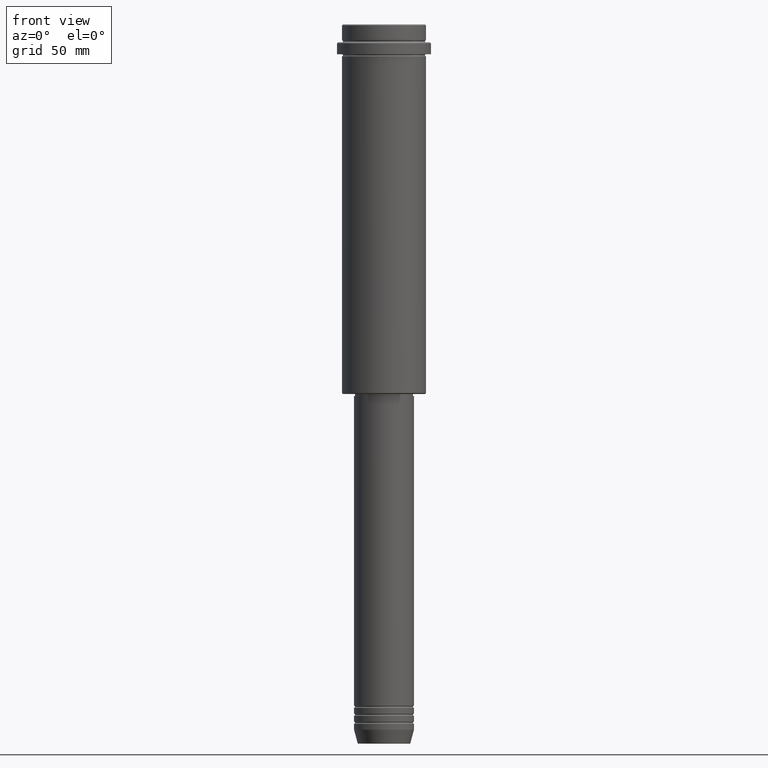
[diagram: clean part render]
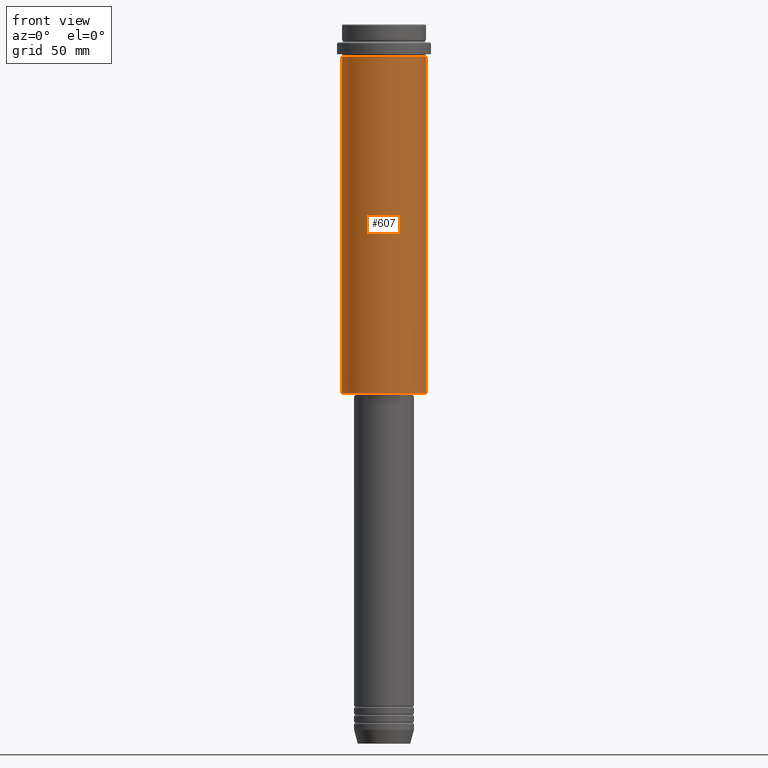
[diagram: same view with one face highlighted and labeled with its STEP entity id]
A machine part, front view. The second image highlights one B-rep face of the part: STEP entity #607.
In plain terms, the highlighted cylindrical surface (partial cylindrical patch) has radius 21 mm, axis along (-0, -0, 1).
Its self-contained STEP definition (entity closure, byte-faithful):
#39 = ORIENTED_EDGE ( 'NONE', *, *, #100, .F. ) ;
#67 = EDGE_CURVE ( 'NONE', #653, #971, #740, .T. ) ;
#100 = EDGE_CURVE ( 'NONE', #642, #271, #215, .T. ) ;
#215 = CIRCLE ( 'NONE', #1020, 20.99999999999999645 ) ;
#218 = CARTESIAN_POINT ( 'NONE',  ( 20.99999999999999645, 0.000000000000000000, -184.5000000000000284 ) ) ;
#271 = VERTEX_POINT ( 'NONE', #1328 ) ;
#278 = DIRECTION ( 'NONE',  ( -1.000000000000000000, 0.000000000000000000, 0.000000000000000000 ) ) ;
#282 = FACE_OUTER_BOUND ( 'NONE', #929, .T. ) ;
#344 = LINE ( 'NONE', #902, #585 ) ;
#385 = CYLINDRICAL_SURFACE ( 'NONE', #794, 20.99999999999999645 ) ;
#393 = ORIENTED_EDGE ( 'NONE', *, *, #778, .T. ) ;
#476 = DIRECTION ( 'NONE',  ( -0.000000000000000000, -0.000000000000000000, 1.000000000000000000 ) ) ;
#490 = ORIENTED_EDGE ( 'NONE', *, *, #67, .T. ) ;
#515 = LINE ( 'NONE', #733, #1206 ) ;
#520 = DIRECTION ( 'NONE',  ( -0.000000000000000000, -0.000000000000000000, 1.000000000000000000 ) ) ;
#525 = CARTESIAN_POINT ( 'NONE',  ( -20.99999999999999645, 2.571758278209441267E-15, -16.00000000000000355 ) ) ;
#585 = VECTOR ( 'NONE', #476, 1000.000000000000000 ) ;
#607 = ADVANCED_FACE ( 'NONE', ( #282 ), #385, .T. ) ;
#634 = CARTESIAN_POINT ( 'NONE',  ( 0.000000000000000000, 0.000000000000000000, -16.00000000000000355 ) ) ;
#642 = VERTEX_POINT ( 'NONE', #525 ) ;
#645 = CARTESIAN_POINT ( 'NONE',  ( -20.99999999999999645, 2.571758278209441267E-15, -184.5000000000000284 ) ) ;
#653 = VERTEX_POINT ( 'NONE', #645 ) ;
#726 = DIRECTION ( 'NONE',  ( -0.000000000000000000, -0.000000000000000000, 1.000000000000000000 ) ) ;
#728 = CARTESIAN_POINT ( 'NONE',  ( 0.000000000000000000, 0.000000000000000000, -184.5000000000000284 ) ) ;
#733 = CARTESIAN_POINT ( 'NONE',  ( -20.99999999999999645, 2.571758278209441267E-15, 0.000000000000000000 ) ) ;
#735 = CARTESIAN_POINT ( 'NONE',  ( 0.000000000000000000, 0.000000000000000000, 0.000000000000000000 ) ) ;
#740 = CIRCLE ( 'NONE', #1268, 20.99999999999999645 ) ;
#772 = ORIENTED_EDGE ( 'NONE', *, *, #1240, .F. ) ;
#778 = EDGE_CURVE ( 'NONE', #971, #271, #344, .T. ) ;
#794 = AXIS2_PLACEMENT_3D ( 'NONE', #735, #726, #1161 ) ;
#902 = CARTESIAN_POINT ( 'NONE',  ( 20.99999999999999645, 0.000000000000000000, 0.000000000000000000 ) ) ;
#929 = EDGE_LOOP ( 'NONE', ( #772, #490, #393, #39 ) ) ;
#971 = VERTEX_POINT ( 'NONE', #218 ) ;
#1020 = AXIS2_PLACEMENT_3D ( 'NONE', #634, #1074, #1382 ) ;
#1074 = DIRECTION ( 'NONE',  ( -0.000000000000000000, -0.000000000000000000, 1.000000000000000000 ) ) ;
#1161 = DIRECTION ( 'NONE',  ( 1.000000000000000000, 0.000000000000000000, 0.000000000000000000 ) ) ;
#1206 = VECTOR ( 'NONE', #1270, 1000.000000000000000 ) ;
#1240 = EDGE_CURVE ( 'NONE', #653, #642, #515, .T. ) ;
#1268 = AXIS2_PLACEMENT_3D ( 'NONE', #728, #520, #278 ) ;
#1270 = DIRECTION ( 'NONE',  ( -0.000000000000000000, -0.000000000000000000, 1.000000000000000000 ) ) ;
#1328 = CARTESIAN_POINT ( 'NONE',  ( 20.99999999999999645, 0.000000000000000000, -16.00000000000000355 ) ) ;
#1382 = DIRECTION ( 'NONE',  ( 1.000000000000000000, 0.000000000000000000, 0.000000000000000000 ) ) ;